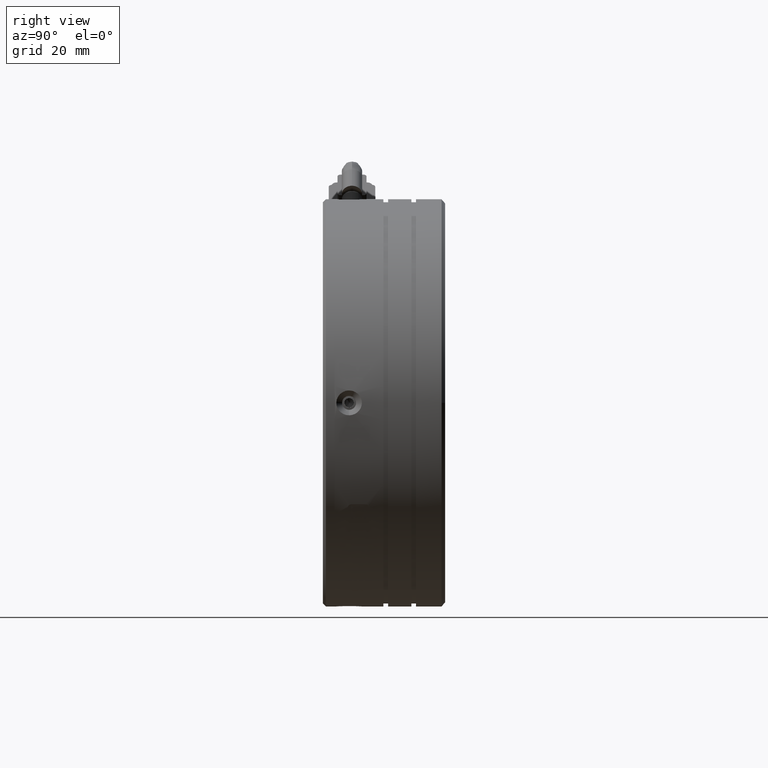
[diagram: clean part render]
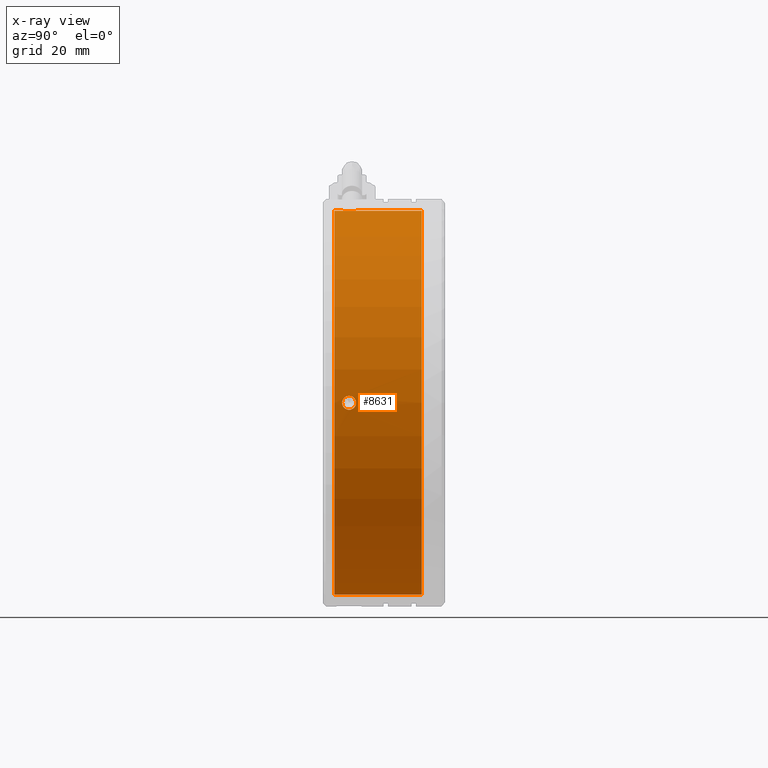
[diagram: x-ray — body ghosted, one internal face saturated and labeled with its STEP entity id]
A machine part, right view, then the same camera in x-ray: the body is ghosted and one INTERNAL B-rep face — a face not visible from any outside direction — is saturated and labeled: STEP entity #8631.
In plain terms, the highlighted cylindrical surface (partial cylindrical patch) has radius 33 mm, axis along (-0, -1, -0).
Its self-contained STEP definition (entity closure, byte-faithful):
#98 = ORIENTED_EDGE ( 'NONE', *, *, #4426, .F. ) ;
#418 = DIRECTION ( 'NONE',  ( 0.0000000000000000000, 0.0000000000000000000, -1.000000000000000000 ) ) ;
#1325 = EDGE_CURVE ( 'NONE', #24435, #28249, #39262, .T. ) ;
#1677 = VERTEX_POINT ( 'NONE', #74490 ) ;
#2016 = CARTESIAN_POINT ( 'NONE',  ( -2.716071020391490200, -0.3927286648912906600, -33.00000000000003600 ) ) ;
#2707 = CARTESIAN_POINT ( 'NONE',  ( 30.27586556915116500, 1.766502041763538400, 0.7378216404815718400 ) ) ;
#3043 = CARTESIAN_POINT ( 'NONE',  ( -1.516071020391504000, 0.9657503221992012100, 32.97817460078714200 ) ) ;
#3415 = EDGE_CURVE ( 'NONE', #80790, #46461, #65979, .T. ) ;
#3606 = VECTOR ( 'NONE', #63077, 1000.000000000000000 ) ;
#4174 = DIRECTION ( 'NONE',  ( -0.0000000000000000000, -1.000000000000000000, -0.0000000000000000000 ) ) ;
#4243 = ORIENTED_EDGE ( 'NONE', *, *, #15641, .F. ) ;
#4426 = EDGE_CURVE ( 'NONE', #28249, #58605, #59298, .T. ) ;
#4691 = LINE ( 'NONE', #47815, #40326 ) ;
#4901 = CARTESIAN_POINT ( 'NONE',  ( -1.667591864840333200, 1.411763260888341900, -32.98339454709515900 ) ) ;
#5652 = LINE ( 'NONE', #63629, #3606 ) ;
#5775 = CARTESIAN_POINT ( 'NONE',  ( -1.516071020391503500, 0.8072713351086959800, -32.97817460078714900 ) ) ;
#5840 = DIRECTION ( 'NONE',  ( 0.0000000000000000000, 1.000000000000000000, 0.0000000000000000000 ) ) ;
#5944 = CARTESIAN_POINT ( 'NONE',  ( 30.26733570743430600, 0.2020844548148637000, 1.048103961761187100 ) ) ;
#6148 = CARTESIAN_POINT ( 'NONE',  ( -2.716071020391486200, -13.32601881678534500, 33.00000000000003600 ) ) ;
#6291 = CARTESIAN_POINT ( 'NONE',  ( -1.516071020391503300, 0.6487921824051992000, 32.97817460078713500 ) ) ;
#8631 = ADVANCED_FACE ( 'NONE', ( #45708, #61446 ), #52998, .F. ) ;
#8779 = CARTESIAN_POINT ( 'NONE',  ( -1.978522949521775300, -0.1521581103907211400, -32.99194266260336400 ) ) ;
#8911 = LINE ( 'NONE', #6148, #42490 ) ;
#9468 = CARTESIAN_POINT ( 'NONE',  ( 30.28273918997904300, 1.975626757688306900, 0.3152330579765894600 ) ) ;
#9511 = CIRCLE ( 'NONE', #70203, 33.00000000000003600 ) ;
#9534 = CARTESIAN_POINT ( 'NONE',  ( -2.716071020391486200, -1.692728664891304500, 33.00000000000003600 ) ) ;
#9758 = CARTESIAN_POINT ( 'NONE',  ( -1.516071020391503500, 0.8072713351086959800, 32.97817460078714900 ) ) ;
#11485 = CARTESIAN_POINT ( 'NONE',  ( -2.716071020391486200, -13.32601881678534500, 33.00000000000003600 ) ) ;
#11657 = CARTESIAN_POINT ( 'NONE',  ( -1.977841059906341800, 1.766176201225374300, -32.99192714785967700 ) ) ;
#12419 = CARTESIAN_POINT ( 'NONE',  ( 30.26732810195380100, 0.2025166340400023600, -1.048338358202383100 ) ) ;
#12716 = CARTESIAN_POINT ( 'NONE',  ( 30.26210358039565000, 0.6487165197651136900, 1.200000000000092300 ) ) ;
#13066 = CARTESIAN_POINT ( 'NONE',  ( -1.547254035345357200, 0.4932874447166579200, 32.97934946666536100 ) ) ;
#13948 = EDGE_CURVE ( 'NONE', #24435, #51609, #5652, .T. ) ;
#14681 = CARTESIAN_POINT ( 'NONE',  ( -2.716071020391486200, 2.007271335108682800, 33.00000000000003600 ) ) ;
#15515 = CARTESIAN_POINT ( 'NONE',  ( -1.667743459670195400, 0.2027778442646973000, -32.98339889650164700 ) ) ;
#15641 = EDGE_CURVE ( 'NONE', #1677, #33068, #25114, .T. ) ;
#16187 = CARTESIAN_POINT ( 'NONE',  ( 30.28393284053778000, 2.007377510687136100, -0.1556996841216925800 ) ) ;
#16214 = CARTESIAN_POINT ( 'NONE',  ( -2.557591869066220300, 2.007271335108683300, 33.00000000000003600 ) ) ;
#18374 = CARTESIAN_POINT ( 'NONE',  ( -2.400116378680400100, 1.975421891839071600, -32.99880286288897900 ) ) ;
#18757 = EDGE_CURVE ( 'NONE', #46461, #53392, #39258, .T. ) ;
#19066 = CARTESIAN_POINT ( 'NONE',  ( -2.716071020391486200, -0.3927286648912906600, 33.00000000000003600 ) ) ;
#19133 = CARTESIAN_POINT ( 'NONE',  ( 30.27586556915116800, -0.1519593715461540200, -0.7378216404813510200 ) ) ;
#19796 = CARTESIAN_POINT ( 'NONE',  ( -1.756641551290326800, 0.06972329556116278700, 32.98623554602826900 ) ) ;
#20384 = CARTESIAN_POINT ( 'NONE',  ( -2.716071020391490200, -1.692728664891304500, -33.00000000000003600 ) ) ;
#20722 = ORIENTED_EDGE ( 'NONE', *, *, #81568, .F. ) ;
#20847 = DIRECTION ( 'NONE',  ( -0.0000000000000000000, -1.000000000000000000, -0.0000000000000000000 ) ) ;
#22002 = VERTEX_POINT ( 'NONE', #79814 ) ;
#22309 = CARTESIAN_POINT ( 'NONE',  ( -1.516071020391504000, 0.6487923480182277200, -32.97817460078713500 ) ) ;
#22690 = CARTESIAN_POINT ( 'NONE',  ( 30.26210358039565700, 0.9658260916596472800, 1.200000000000092500 ) ) ;
#22981 = AXIS2_PLACEMENT_3D ( 'NONE', #27757, #74610, #34431 ) ;
#22986 = CARTESIAN_POINT ( 'NONE',  ( 30.27872891275779200, 1.856281696391340400, -0.6035639478339234200 ) ) ;
#24435 = VERTEX_POINT ( 'NONE', #76683 ) ;
#25114 = B_SPLINE_CURVE_WITH_KNOTS ( 'NONE', 3,
 ( #69229, #22690, #36103, #82974, #42909, #2707, #49632, #9468, #56353, #16187, #63091, #22986, #69831, #29705, #76559, #36396, #83270, #43202 ),
 .UNSPECIFIED., .F., .F.,
 ( 4, 2, 2, 2, 2, 2, 2, 2, 4 ),
 ( 0.0000000000000000000, 0.0004689099025577869600, 0.0009378198051155739300, 0.001406729707673361100, 0.001875639610231148300, 0.002344549512788935900, 0.002813459415346723500, 0.003282369317904511600, 0.003751279220462299200 ),
 .UNSPECIFIED. ) ;
#25201 = CARTESIAN_POINT ( 'NONE',  ( -2.716071020391490200, 2.007271335108682800, -33.00000000000003600 ) ) ;
#25969 = CARTESIAN_POINT ( 'NONE',  ( 30.28273918997905400, -0.3610840874709174100, -0.3152330579763694700 ) ) ;
#26596 = CARTESIAN_POINT ( 'NONE',  ( -2.111577504616401100, -0.2410562130336494100, 32.99477845521643400 ) ) ;
#27757 = CARTESIAN_POINT ( 'NONE',  ( -2.716071020391490200, 13.30727133510869800, -1.131636017531745300E-015 ) ) ;
#27865 = VERTEX_POINT ( 'NONE', #14681 ) ;
#28249 = VERTEX_POINT ( 'NONE', #5775 ) ;
#28722 = ORIENTED_EDGE ( 'NONE', *, *, #73386, .F. ) ;
#29656 = VERTEX_POINT ( 'NONE', #80745 ) ;
#29705 = CARTESIAN_POINT ( 'NONE',  ( 30.27015327894251600, 1.544502471527683800, -0.9599873585860805300 ) ) ;
#29734 = CARTESIAN_POINT ( 'NONE',  ( -2.111579069174067700, 1.855750477904867200, 32.99478280426479400 ) ) ;
#29824 = ORIENTED_EDGE ( 'NONE', *, *, #74697, .T. ) ;
#30646 = EDGE_CURVE ( 'NONE', #29656, #27865, #8911, .T. ) ;
#31366 = CIRCLE ( 'NONE', #22981, 33.00000000000003600 ) ;
#32611 = CARTESIAN_POINT ( 'NONE',  ( 30.28393284053778300, -0.3928348404697431000, 0.1556996841219060500 ) ) ;
#33068 = VERTEX_POINT ( 'NONE', #60896 ) ;
#33154 = ORIENTED_EDGE ( 'NONE', *, *, #13948, .T. ) ;
#33228 = CARTESIAN_POINT ( 'NONE',  ( -2.557592034282567100, -0.3927286648912909900, 33.00000000000003600 ) ) ;
#34431 = DIRECTION ( 'NONE',  ( 0.0000000000000000000, 0.0000000000000000000, -1.000000000000000000 ) ) ;
#35253 = B_SPLINE_CURVE_WITH_KNOTS ( 'NONE', 3,
 ( #49671, #16214, #69857, #29734, #76593, #36431, #83296, #43224, #3043, #49948 ),
 .UNSPECIFIED., .F., .F.,
 ( 4, 2, 2, 2, 4 ),
 ( 0.0000000000000000000, 0.0004686863137177276400, 0.0009373726274354557100, 0.001406058941153183800, 0.001874745254870911800 ),
 .UNSPECIFIED. ) ;
#36103 = CARTESIAN_POINT ( 'NONE',  ( 30.26327966126859100, 1.121408197718174900, 1.168785520655304800 ) ) ;
#36396 = CARTESIAN_POINT ( 'NONE',  ( 30.26328206748696600, 1.121694428811960100, -1.168722034054665300 ) ) ;
#36431 = CARTESIAN_POINT ( 'NONE',  ( -1.757166126515263800, 1.545501260155894400, 32.98625106334230100 ) ) ;
#36808 = B_SPLINE_CURVE_WITH_KNOTS ( 'NONE', 3,
 ( #85917, #39079, #52556, #12419, #59328, #19133, #66019, #25969, #72782, #32611, #79508, #39365, #86216, #46137, #5944, #52849, #12716, #59600 ),
 .UNSPECIFIED., .F., .F.,
 ( 4, 2, 2, 2, 2, 2, 2, 2, 4 ),
 ( 0.003751279220462299200, 0.004220189296893438700, 0.004689099373324577400, 0.005158009449755716900, 0.005626919526186855600, 0.006095829602617994200, 0.006564739679049134600, 0.007033649755480273300, 0.007502559831911412800 ),
 .UNSPECIFIED. ) ;
#38316 = CARTESIAN_POINT ( 'NONE',  ( -1.516071020391503500, 0.8072713351086959800, -32.97817460078714900 ) ) ;
#39079 = CARTESIAN_POINT ( 'NONE',  ( 30.26210358039567400, 0.6487165785571291600, -1.199999999999799700 ) ) ;
#39258 = LINE ( 'NONE', #11485, #74944 ) ;
#39262 = B_SPLINE_CURVE_WITH_KNOTS ( 'NONE', 3,
 ( #2016, #82298, #42208, #48952, #8779, #55657, #15515, #62422, #22309, #69135 ),
 .UNSPECIFIED., .F., .F.,
 ( 4, 2, 2, 2, 4 ),
 ( 2.261188303997093400E-016, 0.0004686863137178412600, 0.0009373726274354564700, 0.001406058941153071700, 0.001874745254870686800 ),
 .UNSPECIFIED. ) ;
#39365 = CARTESIAN_POINT ( 'NONE',  ( 30.27872891275779600, -0.2417390261739501000, 0.6035639478341301400 ) ) ;
#40326 = VECTOR ( 'NONE', #20847, 1000.000000000000000 ) ;
#40726 = EDGE_CURVE ( 'NONE', #33068, #1677, #36808, .T. ) ;
#42208 = CARTESIAN_POINT ( 'NONE',  ( -2.402087126540059600, -0.3615456507223291400, -32.99882599326976900 ) ) ;
#42490 = VECTOR ( 'NONE', #79429, 1000.000000000000000 ) ;
#42609 = ORIENTED_EDGE ( 'NONE', *, *, #65228, .F. ) ;
#42909 = CARTESIAN_POINT ( 'NONE',  ( 30.27017137514495800, 1.545127010204846200, 0.9592045269289118900 ) ) ;
#43202 = CARTESIAN_POINT ( 'NONE',  ( 30.26210358039565700, 0.8072713351086960900, -1.199999999999881200 ) ) ;
#43224 = CARTESIAN_POINT ( 'NONE',  ( -1.547920464128700100, 1.123225972586245000, 32.97937260952999600 ) ) ;
#45109 = CARTESIAN_POINT ( 'NONE',  ( -1.547254035345357200, 1.121255225500734600, -32.97934946666536100 ) ) ;
#45708 = FACE_OUTER_BOUND ( 'NONE', #81844, .T. ) ;
#46041 = CARTESIAN_POINT ( 'NONE',  ( -2.716071020391490200, -1.692728664891304500, -1.131636017531745300E-015 ) ) ;
#46137 = CARTESIAN_POINT ( 'NONE',  ( 30.27015327894250500, 0.07004019868969724200, 0.9599873585862803700 ) ) ;
#46461 = VERTEX_POINT ( 'NONE', #19066 ) ;
#47815 = CARTESIAN_POINT ( 'NONE',  ( -2.716071020391490200, -13.32601881678534500, -33.00000000000003600 ) ) ;
#48952 = CARTESIAN_POINT ( 'NONE',  ( -2.111579069173807400, -0.2412078076873198400, -32.99478280426479400 ) ) ;
#49632 = CARTESIAN_POINT ( 'NONE',  ( 30.27871735660706800, 1.855908134164973500, 0.6039761071247099500 ) ) ;
#49671 = CARTESIAN_POINT ( 'NONE',  ( -2.716071020391486200, 2.007271335108682800, 33.00000000000003600 ) ) ;
#49948 = CARTESIAN_POINT ( 'NONE',  ( -1.516071020391503500, 0.8072713351086959800, 32.97817460078714900 ) ) ;
#51609 = VERTEX_POINT ( 'NONE', #20384 ) ;
#51805 = CARTESIAN_POINT ( 'NONE',  ( -1.756641551290327500, 1.544819374656230400, -32.98623554602826900 ) ) ;
#52556 = CARTESIAN_POINT ( 'NONE',  ( 30.26327966126859100, 0.4931344724992205400, -1.168785520655095700 ) ) ;
#52740 = DIRECTION ( 'NONE',  ( 0.0000000000000000000, 0.0000000000000000000, -1.000000000000000000 ) ) ;
#52849 = CARTESIAN_POINT ( 'NONE',  ( 30.26328206748696200, 0.4928482414054432000, 1.168722034054881400 ) ) ;
#52998 = CYLINDRICAL_SURFACE ( 'NONE', #59872, 33.00000000000003600 ) ;
#53191 = CARTESIAN_POINT ( 'NONE',  ( -1.516071020391503500, 0.8072713351086959800, 32.97817460078714900 ) ) ;
#53392 = VERTEX_POINT ( 'NONE', #9534 ) ;
#53748 = DIRECTION ( 'NONE',  ( -0.0000000000000000000, -1.000000000000000000, -0.0000000000000000000 ) ) ;
#55657 = CARTESIAN_POINT ( 'NONE',  ( -1.757166126515150800, 0.06904141006165227800, -32.98625106334230100 ) ) ;
#56353 = CARTESIAN_POINT ( 'NONE',  ( 30.28392509849338400, 2.007164604417318400, 0.1573320265077511900 ) ) ;
#56586 = EDGE_LOOP ( 'NONE', ( #4243, #72494 ) ) ;
#58562 = CARTESIAN_POINT ( 'NONE',  ( -2.111577504616403400, 1.855598883251043100, -32.99477845521643400 ) ) ;
#58605 = VERTEX_POINT ( 'NONE', #64443 ) ;
#59298 = B_SPLINE_CURVE_WITH_KNOTS ( 'NONE', 3,
 ( #38316, #71719, #45109, #4901, #51805, #11657, #58562, #18374, #65258, #25201 ),
 .UNSPECIFIED., .F., .F.,
 ( 4, 2, 2, 2, 4 ),
 ( 0.001874745254870686800, 0.002343432058372861100, 0.002812118861875035500, 0.003280805665377210300, 0.003749492468879384600 ),
 .UNSPECIFIED. ) ;
#59328 = CARTESIAN_POINT ( 'NONE',  ( 30.27017137514495800, 0.06941566001254349800, -0.9592045269286991700 ) ) ;
#59600 = CARTESIAN_POINT ( 'NONE',  ( 30.26210358039565000, 0.8072713351086959800, 1.200000000000092300 ) ) ;
#59872 = AXIS2_PLACEMENT_3D ( 'NONE', #60553, #53748, #418 ) ;
#59965 = CARTESIAN_POINT ( 'NONE',  ( -1.667591864840332700, 0.2027794093290507800, 32.98339454709515900 ) ) ;
#60553 = CARTESIAN_POINT ( 'NONE',  ( -2.716071020391490200, -13.32601881678534500, -1.131636017531745300E-015 ) ) ;
#60896 = CARTESIAN_POINT ( 'NONE',  ( 30.26210358039565700, 0.8072713351086960900, -1.199999999999881200 ) ) ;
#61446 = FACE_BOUND ( 'NONE', #56586, .T. ) ;
#62422 = CARTESIAN_POINT ( 'NONE',  ( -1.547920464128685200, 0.4913166976312227700, -32.97937260952999600 ) ) ;
#63077 = DIRECTION ( 'NONE',  ( -0.0000000000000000000, -1.000000000000000000, -0.0000000000000000000 ) ) ;
#63091 = CARTESIAN_POINT ( 'NONE',  ( 30.28276453478511600, 1.976351361077079500, -0.3129921246374106600 ) ) ;
#63629 = CARTESIAN_POINT ( 'NONE',  ( -2.716071020391490200, -13.32601881678534500, -33.00000000000003600 ) ) ;
#64443 = CARTESIAN_POINT ( 'NONE',  ( -2.716071020391490200, 2.007271335108682800, -33.00000000000003600 ) ) ;
#65228 = EDGE_CURVE ( 'NONE', #27865, #80790, #35253, .T. ) ;
#65258 = CARTESIAN_POINT ( 'NONE',  ( -2.557592034282572000, 2.007271335108683300, -33.00000000000003600 ) ) ;
#65979 = B_SPLINE_CURVE_WITH_KNOTS ( 'NONE', 3,
 ( #53191, #6291, #13066, #59965, #19796, #66665, #26596, #73430, #33228, #80132 ),
 .UNSPECIFIED., .F., .F.,
 ( 4, 2, 2, 2, 4 ),
 ( 0.001874745254870911800, 0.002343432058373084500, 0.002812118861875257100, 0.003280805665377430200, 0.003749492468879603200 ),
 .UNSPECIFIED. ) ;
#66019 = CARTESIAN_POINT ( 'NONE',  ( 30.27871735660705700, -0.2413654639475856500, -0.6039761071244909000 ) ) ;
#66665 = CARTESIAN_POINT ( 'NONE',  ( -1.977841059906339600, -0.1516335310079813800, 32.99192714785967700 ) ) ;
#67279 = ORIENTED_EDGE ( 'NONE', *, *, #18757, .F. ) ;
#69135 = CARTESIAN_POINT ( 'NONE',  ( -1.516071020391503500, 0.8072713351086959800, -32.97817460078714900 ) ) ;
#69229 = CARTESIAN_POINT ( 'NONE',  ( 30.26210358039565000, 0.8072713351086959800, 1.200000000000092300 ) ) ;
#69831 = CARTESIAN_POINT ( 'NONE',  ( 30.27591459152081700, 1.768328481776676000, -0.7358360129737872000 ) ) ;
#69857 = CARTESIAN_POINT ( 'NONE',  ( -2.402087126540426900, 1.976088320939825000, 32.99882599326977600 ) ) ;
#70203 = AXIS2_PLACEMENT_3D ( 'NONE', #46041, #5840, #52740 ) ;
#71719 = CARTESIAN_POINT ( 'NONE',  ( -1.516071020391503100, 0.9657504878121914200, -32.97817460078713500 ) ) ;
#72494 = ORIENTED_EDGE ( 'NONE', *, *, #40726, .F. ) ;
#72782 = CARTESIAN_POINT ( 'NONE',  ( 30.28392509849339800, -0.3926219341999274100, -0.1573320265075288700 ) ) ;
#73386 = EDGE_CURVE ( 'NONE', #53392, #51609, #9511, .T. ) ;
#73430 = CARTESIAN_POINT ( 'NONE',  ( -2.400116378680397000, -0.3608792216216789000, 32.99880286288897900 ) ) ;
#73735 = ORIENTED_EDGE ( 'NONE', *, *, #30646, .F. ) ;
#74490 = CARTESIAN_POINT ( 'NONE',  ( 30.26210358039565000, 0.8072713351086959800, 1.200000000000092300 ) ) ;
#74610 = DIRECTION ( 'NONE',  ( -0.0000000000000000000, -1.000000000000000000, -0.0000000000000000000 ) ) ;
#74697 = EDGE_CURVE ( 'NONE', #22002, #58605, #4691, .T. ) ;
#74944 = VECTOR ( 'NONE', #4174, 1000.000000000000000 ) ;
#76559 = CARTESIAN_POINT ( 'NONE',  ( 30.26733570743430200, 1.412458215402521800, -1.048103961760978000 ) ) ;
#76593 = CARTESIAN_POINT ( 'NONE',  ( -1.978522949521982300, 1.766700780608278600, 32.99194266260335000 ) ) ;
#76683 = CARTESIAN_POINT ( 'NONE',  ( -2.716071020391490200, -0.3927286648912906600, -33.00000000000003600 ) ) ;
#79429 = DIRECTION ( 'NONE',  ( -0.0000000000000000000, -1.000000000000000000, -0.0000000000000000000 ) ) ;
#79508 = CARTESIAN_POINT ( 'NONE',  ( 30.28276453478510900, -0.3618086908596832000, 0.3129921246376338700 ) ) ;
#79814 = CARTESIAN_POINT ( 'NONE',  ( -2.716071020391490200, 13.30727133510869800, -33.00000000000003600 ) ) ;
#80132 = CARTESIAN_POINT ( 'NONE',  ( -2.716071020391486200, -0.3927286648912906600, 33.00000000000003600 ) ) ;
#80745 = CARTESIAN_POINT ( 'NONE',  ( -2.716071020391486200, 13.30727133510869800, 33.00000000000003600 ) ) ;
#80790 = VERTEX_POINT ( 'NONE', #9758 ) ;
#81568 = EDGE_CURVE ( 'NONE', #22002, #29656, #31366, .T. ) ;
#81844 = EDGE_LOOP ( 'NONE', ( #73735, #20722, #29824, #98, #83275, #33154, #28722, #67279, #82601, #42609 ) ) ;
#82298 = CARTESIAN_POINT ( 'NONE',  ( -2.557591869066032400, -0.3927286648912612400, -33.00000000000002800 ) ) ;
#82601 = ORIENTED_EDGE ( 'NONE', *, *, #3415, .F. ) ;
#82974 = CARTESIAN_POINT ( 'NONE',  ( 30.26732810195379700, 1.412026036177376900, 1.048338358202600500 ) ) ;
#83270 = CARTESIAN_POINT ( 'NONE',  ( 30.26210358039565300, 0.9658260328664218800, -1.199999999999962000 ) ) ;
#83275 = ORIENTED_EDGE ( 'NONE', *, *, #1325, .F. ) ;
#83296 = CARTESIAN_POINT ( 'NONE',  ( -1.667743459670267400, 1.411764825952828600, 32.98339889650164700 ) ) ;
#85917 = CARTESIAN_POINT ( 'NONE',  ( 30.26210358039565700, 0.8072713351086960900, -1.199999999999881200 ) ) ;
#86216 = CARTESIAN_POINT ( 'NONE',  ( 30.27591459152080600, -0.1537858115592753700, 0.7358360129740064700 ) ) ;